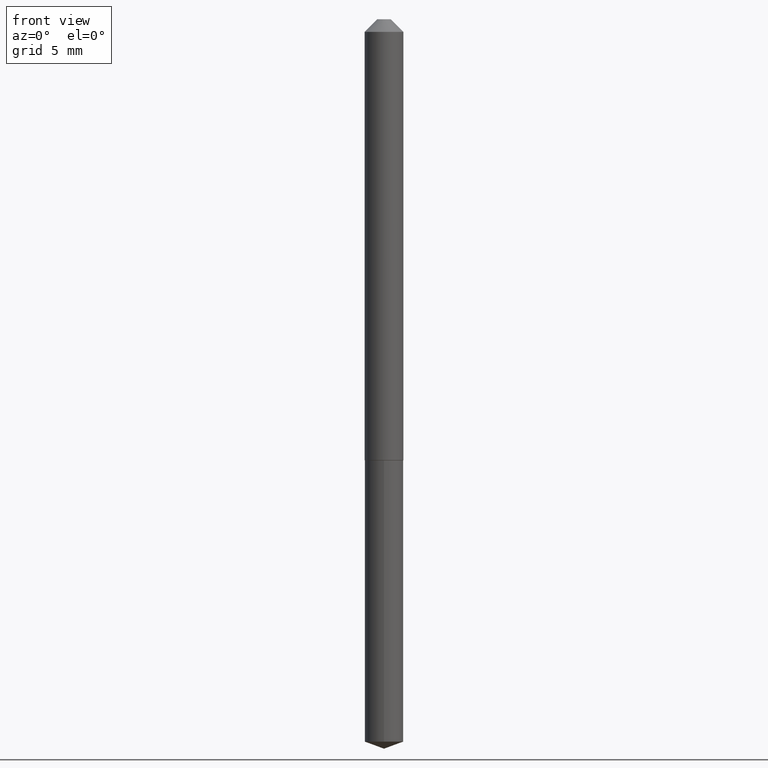
[diagram: clean part render]
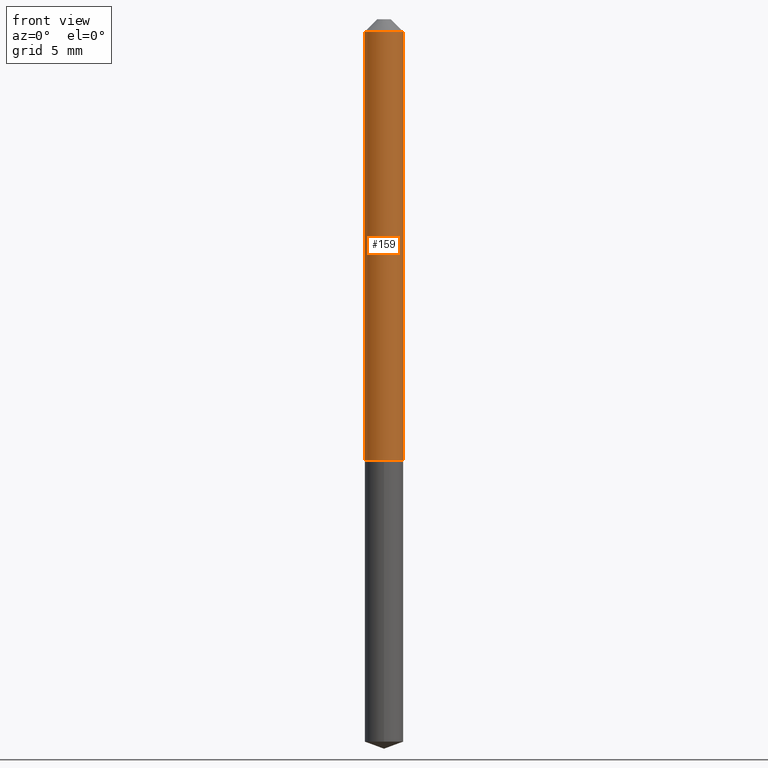
[diagram: same view with one face highlighted and labeled with its STEP entity id]
A machine part, front view. The second image highlights one B-rep face of the part: STEP entity #159.
In plain terms, the highlighted cylindrical surface (edge-blend (fillet) strip) has radius 1.2192 mm, axis along (-0, 0, 1).
Its self-contained STEP definition (entity closure, byte-faithful):
#7 = DIRECTION ( 'NONE',  ( 1.000000000000000000, -6.982962677686262766E-15, 0.000000000000000000 ) ) ;
#10 = EDGE_CURVE ( 'NONE', #174, #263, #87, .T. ) ;
#33 = CARTESIAN_POINT ( 'NONE',  ( 0.04800000000000007733, -3.351822085289413070E-16, 2.340564852382052838E-30 ) ) ;
#39 = DIRECTION ( 'NONE',  ( -2.445468806185136597E-29, 3.491481338843145583E-15, 1.000000000000000000 ) ) ;
#43 = CIRCLE ( 'NONE', #176, 0.04800000000000013284 ) ;
#59 = DIRECTION ( 'NONE',  ( -2.445468806185136877E-29, 3.491481338843145188E-15, 1.000000000000000000 ) ) ;
#75 = CARTESIAN_POINT ( 'NONE',  ( 7.642090019328601786E-31, -1.091087918388490144E-16, -0.03125000000000020123 ) ) ;
#77 = CARTESIAN_POINT ( 'NONE',  ( -0.04800000000000013284, -3.483857293537816994E-15, -1.095500000000000140 ) ) ;
#87 = LINE ( 'NONE', #33, #140 ) ;
#95 = CARTESIAN_POINT ( 'NONE',  ( 2.679011077175817397E-29, -3.824917806702666569E-15, -1.095500000000000140 ) ) ;
#99 = EDGE_CURVE ( 'NONE', #118, #174, #43, .T. ) ;
#105 = DIRECTION ( 'NONE',  ( -2.445468806185136597E-29, 3.491481338843145583E-15, 1.000000000000000000 ) ) ;
#112 = EDGE_LOOP ( 'NONE', ( #194, #255, #125, #319 ) ) ;
#118 = VERTEX_POINT ( 'NONE', #77 ) ;
#122 = VECTOR ( 'NONE', #59, 39.37007874015748143 ) ;
#125 = ORIENTED_EDGE ( 'NONE', *, *, #10, .T. ) ;
#131 = EDGE_CURVE ( 'NONE', #229, #263, #355, .T. ) ;
#140 = VECTOR ( 'NONE', #290, 39.37007874015748143 ) ;
#159 = ADVANCED_FACE ( 'NONE', ( #245 ), #165, .T. ) ;
#165 = CYLINDRICAL_SURFACE ( 'NONE', #264, 0.04800000000000007733 ) ;
#174 = VERTEX_POINT ( 'NONE', #358 ) ;
#176 = AXIS2_PLACEMENT_3D ( 'NONE', #95, #39, #7 ) ;
#194 = ORIENTED_EDGE ( 'NONE', *, *, #383, .F. ) ;
#209 = CARTESIAN_POINT ( 'NONE',  ( -0.04800000000000007733, 3.410605131648486387E-16, -2.361088843322358304E-30 ) ) ;
#219 = DIRECTION ( 'NONE',  ( -2.445468806185136597E-29, 3.491481338843145583E-15, 1.000000000000000000 ) ) ;
#229 = VERTEX_POINT ( 'NONE', #382 ) ;
#241 = AXIS2_PLACEMENT_3D ( 'NONE', #75, #219, #305 ) ;
#245 = FACE_OUTER_BOUND ( 'NONE', #112, .T. ) ;
#255 = ORIENTED_EDGE ( 'NONE', *, *, #99, .T. ) ;
#263 = VERTEX_POINT ( 'NONE', #337 ) ;
#264 = AXIS2_PLACEMENT_3D ( 'NONE', #366, #105, #333 ) ;
#290 = DIRECTION ( 'NONE',  ( -2.445468806185136877E-29, 3.491481338843145188E-15, 1.000000000000000000 ) ) ;
#296 = LINE ( 'NONE', #209, #122 ) ;
#305 = DIRECTION ( 'NONE',  ( 1.000000000000000000, -6.982962677686266711E-15, 0.000000000000000000 ) ) ;
#319 = ORIENTED_EDGE ( 'NONE', *, *, #131, .F. ) ;
#333 = DIRECTION ( 'NONE',  ( 1.000000000000000000, -6.982962677686265922E-15, 4.876176775795935793E-29 ) ) ;
#337 = CARTESIAN_POINT ( 'NONE',  ( 0.04800000000000000794, -4.442910003677899146E-16, -0.03125000000000020123 ) ) ;
#355 = CIRCLE ( 'NONE', #241, 0.04800000000000000794 ) ;
#358 = CARTESIAN_POINT ( 'NONE',  ( 0.04800000000000013284, -4.160100015231607876E-15, -1.095500000000000140 ) ) ;
#366 = CARTESIAN_POINT ( 'NONE',  ( 0.000000000000000000, 0.000000000000000000, 0.000000000000000000 ) ) ;
#382 = CARTESIAN_POINT ( 'NONE',  ( -0.04800000000000000794, -1.625952786105907865E-15, -0.03125000000000020123 ) ) ;
#383 = EDGE_CURVE ( 'NONE', #118, #229, #296, .T. ) ;